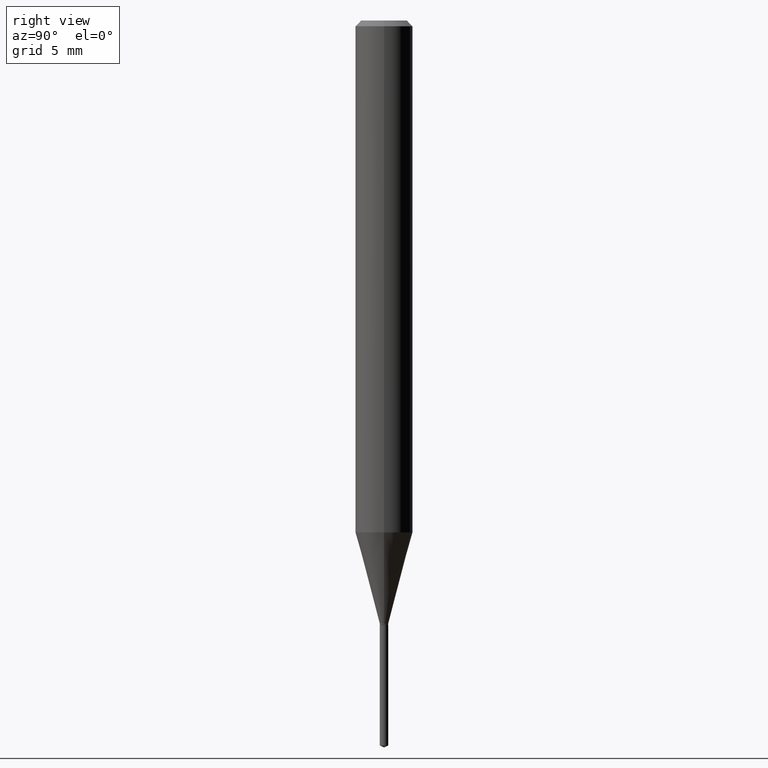
[diagram: clean part render]
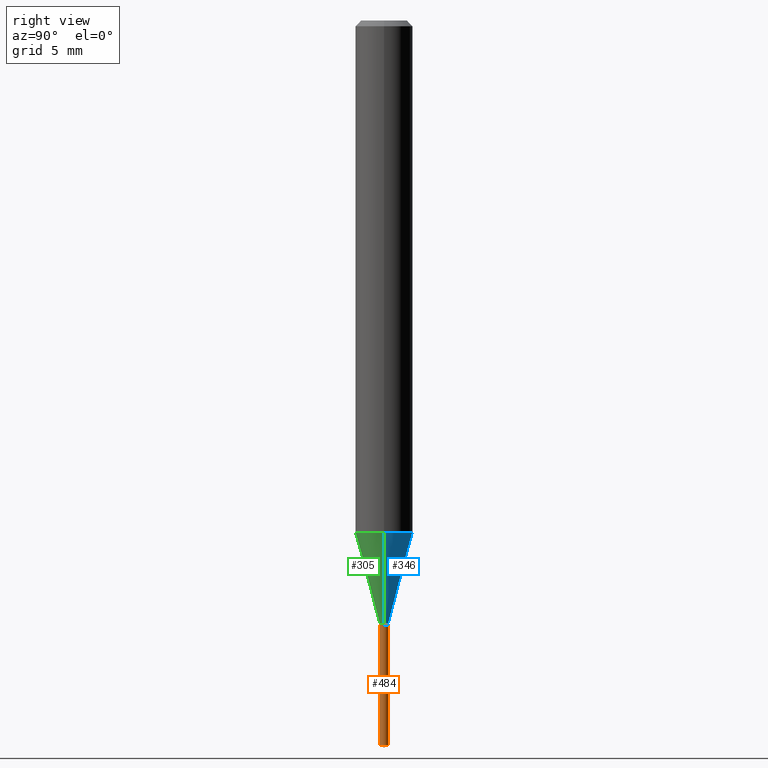
[diagram: same view with three faces highlighted in distinct colors, each labeled with its STEP entity id]
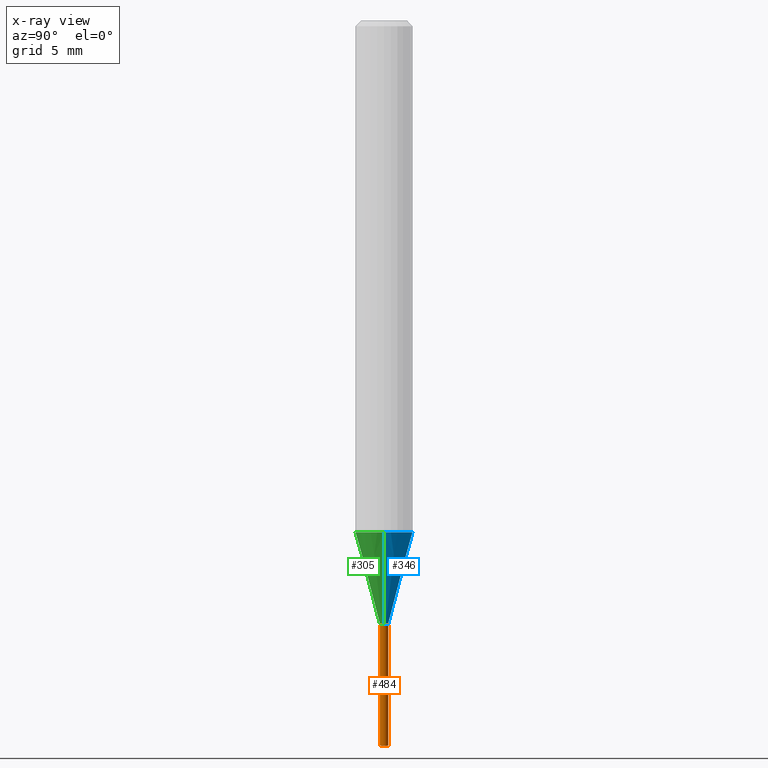
[diagram: x-ray of the same camera — body ghosted, the three highlighted faces saturated]
A machine part, right view with three faces highlighted in distinct colors.
The next image is the same camera in x-ray (body ghosted, the three faces saturated) — at least one of them is partly hidden behind the body in this view.
Their STEP definitions:

[orange] entity #484 — the highlighted cylindrical surface (edge-blend (fillet) strip) has radius 0.2197 mm, axis along (-0, 0, 1).
#29 = ORIENTED_EDGE ( 'NONE', *, *, #92, .F. ) ;
#30 = EDGE_CURVE ( 'NONE', #188, #321, #433, .T. ) ;
#35 = DIRECTION ( 'NONE',  ( -2.433949354103485076E-29, 3.507977849870565923E-15, 1.000000000000000000 ) ) ;
#36 = DIRECTION ( 'NONE',  ( -6.982962677686266711E-15, -1.000000000000000000, 0.000000000000000000 ) ) ;
#67 = EDGE_CURVE ( 'NONE', #154, #332, #385, .T. ) ;
#74 = LINE ( 'NONE', #119, #279 ) ;
#92 = EDGE_CURVE ( 'NONE', #188, #154, #142, .T. ) ;
#101 = DIRECTION ( 'NONE',  ( -2.433949354103485076E-29, 3.507977849870565923E-15, 1.000000000000000000 ) ) ;
#118 = CARTESIAN_POINT ( 'NONE',  ( 6.146194664328519809E-17, 0.008649999999995657690, -1.244099999999999984 ) ) ;
#119 = CARTESIAN_POINT ( 'NONE',  ( 6.146194664327909674E-17, 0.008649999999995657690, -1.244099999999999984 ) ) ;
#136 = EDGE_CURVE ( 'NONE', #321, #332, #74, .T. ) ;
#142 = LINE ( 'NONE', #287, #153 ) ;
#153 = VECTOR ( 'NONE', #448, 39.37007874015748143 ) ;
#154 = VERTEX_POINT ( 'NONE', #189 ) ;
#188 = VERTEX_POINT ( 'NONE', #228 ) ;
#189 = CARTESIAN_POINT ( 'NONE',  ( -6.040262716195577240E-17, -0.008650000000004345185, -1.244099999999999984 ) ) ;
#211 = CYLINDRICAL_SURFACE ( 'NONE', #344, 0.008650000000000001438 ) ;
#214 = DIRECTION ( 'NONE',  ( -6.982962677686265133E-15, -1.000000000000000000, 0.000000000000000000 ) ) ;
#228 = CARTESIAN_POINT ( 'NONE',  ( -6.040262716194978199E-17, -0.008650000000005219486, -1.492066438756959101 ) ) ;
#233 = AXIS2_PLACEMENT_3D ( 'NONE', #328, #248, #293 ) ;
#241 = ORIENTED_EDGE ( 'NONE', *, *, #30, .T. ) ;
#248 = DIRECTION ( 'NONE',  ( -2.433949354103485076E-29, 3.507977849870565923E-15, 1.000000000000000000 ) ) ;
#279 = VECTOR ( 'NONE', #339, 39.37007874015748143 ) ;
#287 = CARTESIAN_POINT ( 'NONE',  ( -6.040262716195579705E-17, -0.008650000000004346920, -1.244099999999999984 ) ) ;
#291 = CARTESIAN_POINT ( 'NONE',  ( 3.645945495226770738E-29, -5.213612708325456787E-15, -1.492066438756959101 ) ) ;
#293 = DIRECTION ( 'NONE',  ( -6.982962677686265133E-15, -1.000000000000000000, 0.000000000000000000 ) ) ;
#321 = VERTEX_POINT ( 'NONE', #465 ) ;
#324 = CARTESIAN_POINT ( 'NONE',  ( 3.042407741774928155E-29, -4.343751933654757151E-15, -1.244099999999999984 ) ) ;
#328 = CARTESIAN_POINT ( 'NONE',  ( 3.042407741774928155E-29, -4.343751933654757151E-15, -1.244099999999999984 ) ) ;
#332 = VERTEX_POINT ( 'NONE', #118 ) ;
#335 = FACE_OUTER_BOUND ( 'NONE', #373, .T. ) ;
#339 = DIRECTION ( 'NONE',  ( -2.433949354103485076E-29, 3.507977849870566318E-15, 1.000000000000000000 ) ) ;
#344 = AXIS2_PLACEMENT_3D ( 'NONE', #324, #101, #36 ) ;
#352 = AXIS2_PLACEMENT_3D ( 'NONE', #291, #35, #214 ) ;
#373 = EDGE_LOOP ( 'NONE', ( #241, #420, #395, #29 ) ) ;
#385 = CIRCLE ( 'NONE', #233, 0.008649999999999999703 ) ;
#395 = ORIENTED_EDGE ( 'NONE', *, *, #67, .F. ) ;
#420 = ORIENTED_EDGE ( 'NONE', *, *, #136, .T. ) ;
#433 = CIRCLE ( 'NONE', #352, 0.008650000000000004907 ) ;
#448 = DIRECTION ( 'NONE',  ( -2.433949354103485076E-29, 3.507977849870566318E-15, 1.000000000000000000 ) ) ;
#465 = CARTESIAN_POINT ( 'NONE',  ( 6.146194664328514878E-17, 0.008649999999994790328, -1.492066438756959101 ) ) ;
#484 = ADVANCED_FACE ( 'NONE', ( #335 ), #211, .T. ) ;

[blue] entity #346 — the highlighted conical surface has half-angle 15 deg.
#2 = LINE ( 'NONE', #423, #140 ) ;
#5 = DIRECTION ( 'NONE',  ( 1.000000000000000000, -6.982962677686226479E-15, 0.000000000000000000 ) ) ;
#46 = DIRECTION ( 'NONE',  ( 1.000000000000000000, -6.982962677686226479E-15, 0.000000000000000000 ) ) ;
#82 = FACE_OUTER_BOUND ( 'NONE', #129, .T. ) ;
#84 = DIRECTION ( 'NONE',  ( -2.445468806185136597E-29, 3.491481338843145583E-15, 1.000000000000000000 ) ) ;
#104 = VERTEX_POINT ( 'NONE', #461 ) ;
#108 = ORIENTED_EDGE ( 'NONE', *, *, #449, .T. ) ;
#117 = DIRECTION ( 'NONE',  ( -2.445468806185136597E-29, 3.491481338843145583E-15, 1.000000000000000000 ) ) ;
#125 = CARTESIAN_POINT ( 'NONE',  ( 0.008649999999999999703, -4.395076709335750145E-15, -1.241499999999999826 ) ) ;
#129 = EDGE_LOOP ( 'NONE', ( #256, #108, #354, #368 ) ) ;
#140 = VECTOR ( 'NONE', #227, 39.37007874015747433 ) ;
#199 = EDGE_CURVE ( 'NONE', #377, #104, #343, .T. ) ;
#225 = CARTESIAN_POINT ( 'NONE',  ( 0.05905000000000013016, -4.090286586478981149E-15, -1.053404639298528345 ) ) ;
#227 = DIRECTION ( 'NONE',  ( -0.2588190451025213501, 5.211531920934551042E-15, 0.9659258262890682012 ) ) ;
#232 = CARTESIAN_POINT ( 'NONE',  ( 0.008649999999999999703, -4.395076709335750145E-15, -1.241499999999999826 ) ) ;
#235 = CARTESIAN_POINT ( 'NONE',  ( 3.036049522878846484E-29, -4.334674082173764544E-15, -1.241499999999999826 ) ) ;
#245 = DIRECTION ( 'NONE',  ( -2.445468806185136597E-29, 3.491481338843145583E-15, 1.000000000000000000 ) ) ;
#247 = EDGE_CURVE ( 'NONE', #377, #489, #468, .T. ) ;
#250 = VERTEX_POINT ( 'NONE', #374 ) ;
#256 = ORIENTED_EDGE ( 'NONE', *, *, #199, .T. ) ;
#274 = DIRECTION ( 'NONE',  ( 0.2588190451025213501, 1.565188264969621968E-15, 0.9659258262890682012 ) ) ;
#280 = CIRCLE ( 'NONE', #403, 0.05905000000000013016 ) ;
#284 = CONICAL_SURFACE ( 'NONE', #361, 0.008649999999999999703, 0.2617993877991500740 ) ;
#286 = CARTESIAN_POINT ( 'NONE',  ( 2.576068185695256609E-29, -3.677942640361607017E-15, -1.053404639298528345 ) ) ;
#308 = AXIS2_PLACEMENT_3D ( 'NONE', #380, #117, #5 ) ;
#343 = CIRCLE ( 'NONE', #308, 0.008649999999999999703 ) ;
#346 = ADVANCED_FACE ( 'NONE', ( #82 ), #284, .T. ) ;
#354 = ORIENTED_EDGE ( 'NONE', *, *, #479, .F. ) ;
#361 = AXIS2_PLACEMENT_3D ( 'NONE', #235, #84, #46 ) ;
#368 = ORIENTED_EDGE ( 'NONE', *, *, #247, .F. ) ;
#374 = CARTESIAN_POINT ( 'NONE',  ( -0.05905000000000013016, -3.258367154895266735E-15, -1.053404639298528345 ) ) ;
#377 = VERTEX_POINT ( 'NONE', #232 ) ;
#380 = CARTESIAN_POINT ( 'NONE',  ( 3.036049522878846484E-29, -4.334674082173764544E-15, -1.241499999999999826 ) ) ;
#403 = AXIS2_PLACEMENT_3D ( 'NONE', #286, #245, #405 ) ;
#405 = DIRECTION ( 'NONE',  ( 1.000000000000000000, -6.982962677686265133E-15, 0.000000000000000000 ) ) ;
#422 = VECTOR ( 'NONE', #274, 39.37007874015747433 ) ;
#423 = CARTESIAN_POINT ( 'NONE',  ( -0.008649999999999999703, -4.273212135530516336E-15, -1.241499999999999826 ) ) ;
#449 = EDGE_CURVE ( 'NONE', #104, #250, #2, .T. ) ;
#461 = CARTESIAN_POINT ( 'NONE',  ( -0.008649999999999999703, -4.276878190936301888E-15, -1.241499999999999826 ) ) ;
#468 = LINE ( 'NONE', #125, #422 ) ;
#479 = EDGE_CURVE ( 'NONE', #489, #250, #280, .T. ) ;
#489 = VERTEX_POINT ( 'NONE', #225 ) ;

[green] entity #305 — the highlighted conical surface has half-angle 15 deg.
#2 = LINE ( 'NONE', #423, #140 ) ;
#34 = ORIENTED_EDGE ( 'NONE', *, *, #247, .T. ) ;
#57 = DIRECTION ( 'NONE',  ( 1.000000000000000000, -6.982962677686226479E-15, 0.000000000000000000 ) ) ;
#61 = CONICAL_SURFACE ( 'NONE', #207, 0.008649999999999999703, 0.2617993877991500740 ) ;
#64 = DIRECTION ( 'NONE',  ( 1.000000000000000000, -6.982962677686265133E-15, 0.000000000000000000 ) ) ;
#72 = ORIENTED_EDGE ( 'NONE', *, *, #456, .T. ) ;
#85 = EDGE_CURVE ( 'NONE', #250, #489, #126, .T. ) ;
#104 = VERTEX_POINT ( 'NONE', #461 ) ;
#125 = CARTESIAN_POINT ( 'NONE',  ( 0.008649999999999999703, -4.395076709335750145E-15, -1.241499999999999826 ) ) ;
#126 = CIRCLE ( 'NONE', #251, 0.05905000000000013016 ) ;
#140 = VECTOR ( 'NONE', #227, 39.37007874015747433 ) ;
#155 = CIRCLE ( 'NONE', #353, 0.008649999999999999703 ) ;
#195 = DIRECTION ( 'NONE',  ( 1.000000000000000000, -6.982962677686226479E-15, 0.000000000000000000 ) ) ;
#207 = AXIS2_PLACEMENT_3D ( 'NONE', #426, #298, #195 ) ;
#209 = ORIENTED_EDGE ( 'NONE', *, *, #85, .F. ) ;
#225 = CARTESIAN_POINT ( 'NONE',  ( 0.05905000000000013016, -4.090286586478981149E-15, -1.053404639298528345 ) ) ;
#227 = DIRECTION ( 'NONE',  ( -0.2588190451025213501, 5.211531920934551042E-15, 0.9659258262890682012 ) ) ;
#232 = CARTESIAN_POINT ( 'NONE',  ( 0.008649999999999999703, -4.395076709335750145E-15, -1.241499999999999826 ) ) ;
#247 = EDGE_CURVE ( 'NONE', #377, #489, #468, .T. ) ;
#250 = VERTEX_POINT ( 'NONE', #374 ) ;
#251 = AXIS2_PLACEMENT_3D ( 'NONE', #406, #408, #64 ) ;
#274 = DIRECTION ( 'NONE',  ( 0.2588190451025213501, 1.565188264969621968E-15, 0.9659258262890682012 ) ) ;
#298 = DIRECTION ( 'NONE',  ( -2.445468806185136597E-29, 3.491481338843145583E-15, 1.000000000000000000 ) ) ;
#305 = ADVANCED_FACE ( 'NONE', ( #467 ), #61, .T. ) ;
#353 = AXIS2_PLACEMENT_3D ( 'NONE', #443, #397, #57 ) ;
#374 = CARTESIAN_POINT ( 'NONE',  ( -0.05905000000000013016, -3.258367154895266735E-15, -1.053404639298528345 ) ) ;
#377 = VERTEX_POINT ( 'NONE', #232 ) ;
#397 = DIRECTION ( 'NONE',  ( -2.445468806185136597E-29, 3.491481338843145583E-15, 1.000000000000000000 ) ) ;
#398 = ORIENTED_EDGE ( 'NONE', *, *, #449, .F. ) ;
#402 = EDGE_LOOP ( 'NONE', ( #398, #72, #34, #209 ) ) ;
#406 = CARTESIAN_POINT ( 'NONE',  ( 2.576068185695256609E-29, -3.677942640361607017E-15, -1.053404639298528345 ) ) ;
#408 = DIRECTION ( 'NONE',  ( -2.445468806185136597E-29, 3.491481338843145583E-15, 1.000000000000000000 ) ) ;
#422 = VECTOR ( 'NONE', #274, 39.37007874015747433 ) ;
#423 = CARTESIAN_POINT ( 'NONE',  ( -0.008649999999999999703, -4.273212135530516336E-15, -1.241499999999999826 ) ) ;
#426 = CARTESIAN_POINT ( 'NONE',  ( 3.036049522878846484E-29, -4.334674082173764544E-15, -1.241499999999999826 ) ) ;
#443 = CARTESIAN_POINT ( 'NONE',  ( 3.036049522878846484E-29, -4.334674082173764544E-15, -1.241499999999999826 ) ) ;
#449 = EDGE_CURVE ( 'NONE', #104, #250, #2, .T. ) ;
#456 = EDGE_CURVE ( 'NONE', #104, #377, #155, .T. ) ;
#461 = CARTESIAN_POINT ( 'NONE',  ( -0.008649999999999999703, -4.276878190936301888E-15, -1.241499999999999826 ) ) ;
#467 = FACE_OUTER_BOUND ( 'NONE', #402, .T. ) ;
#468 = LINE ( 'NONE', #125, #422 ) ;
#489 = VERTEX_POINT ( 'NONE', #225 ) ;